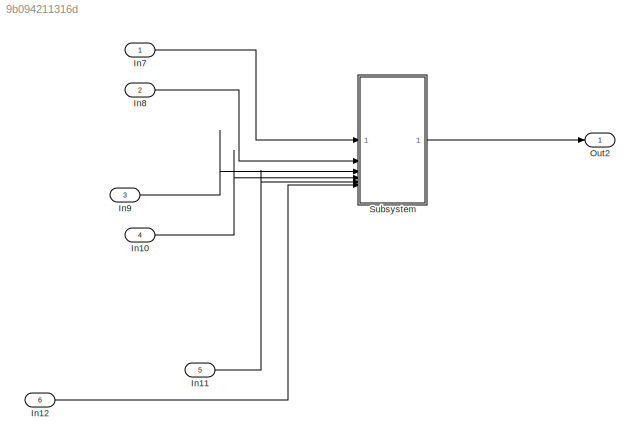
MODEL slx_9b094211316d
KIND model
CONFIG AbsTol = auto
CONFIG EnableMultiTasking = off
CONFIG FixedStep = auto
CONFIG MaxStep = auto
CONFIG MinStep = auto
CONFIG RelTol = 1e-3
CONFIG SampleTimeConstraint = Unconstrained
CONFIG SolverName = VariableStepAuto
CONFIG StartTime = 0.0
CONFIG StopTime = 10.0
BLOCK [Inport] In10
  Port = 4
BLOCK [Inport] In11
  Port = 5
BLOCK [Inport] In12
  Port = 6
BLOCK [Inport] In7
BLOCK [Inport] In8
  Port = 2
BLOCK [Inport] In9
  Port = 3
BLOCK [Outport] Out2
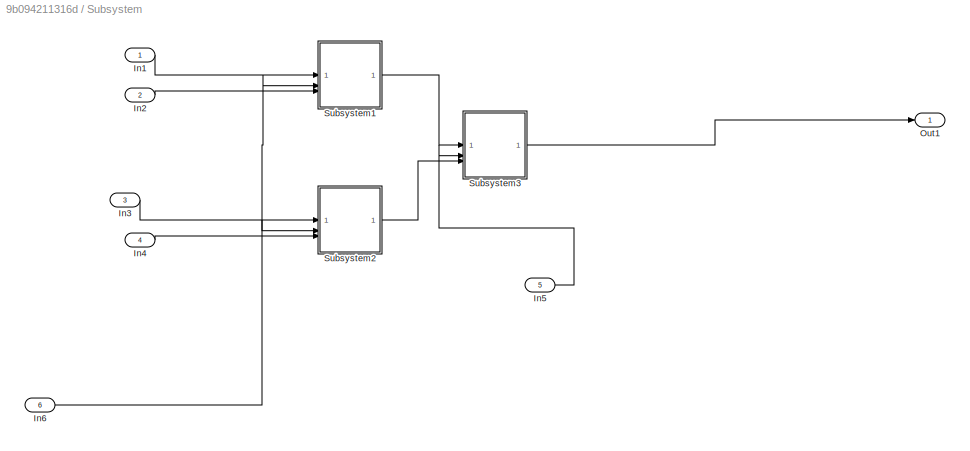
BLOCK [SubSystem] Subsystem
BLOCK [Inport] Subsystem/In1
BLOCK [Inport] Subsystem/In2
  Port = 2
BLOCK [Inport] Subsystem/In3
  Port = 3
BLOCK [Inport] Subsystem/In4
  Port = 4
BLOCK [Inport] Subsystem/In5
  Port = 5
BLOCK [Inport] Subsystem/In6
  Port = 6
BLOCK [Outport] Subsystem/Out1
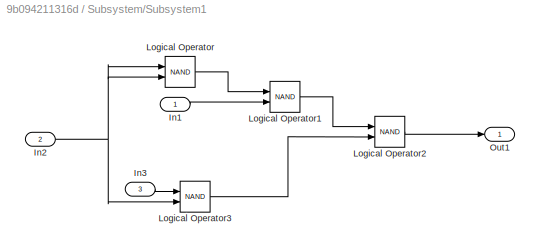
BLOCK [SubSystem] Subsystem/Subsystem1
BLOCK [Inport] Subsystem/Subsystem1/In1
BLOCK [Inport] Subsystem/Subsystem1/In2
  Port = 2
BLOCK [Inport] Subsystem/Subsystem1/In3
  Port = 3
BLOCK [Logic] Subsystem/Subsystem1/Logical Operator
  AllPortsSameDT = off
  Operator = NAND
  OutDataTypeStr = boolean
BLOCK [Logic] Subsystem/Subsystem1/Logical Operator1
  AllPortsSameDT = off
  Operator = NAND
  OutDataTypeStr = boolean
BLOCK [Logic] Subsystem/Subsystem1/Logical Operator2
  AllPortsSameDT = off
  Operator = NAND
  OutDataTypeStr = boolean
BLOCK [Logic] Subsystem/Subsystem1/Logical Operator3
  AllPortsSameDT = off
  Operator = NAND
  OutDataTypeStr = boolean
BLOCK [Outport] Subsystem/Subsystem1/Out1
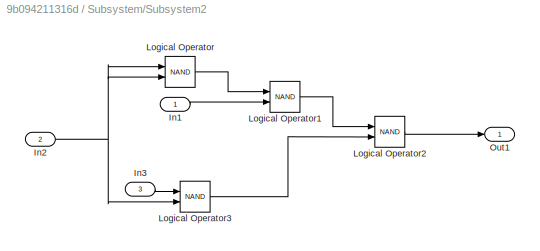
BLOCK [SubSystem] Subsystem/Subsystem2
BLOCK [Inport] Subsystem/Subsystem2/In1
BLOCK [Inport] Subsystem/Subsystem2/In2
  Port = 2
BLOCK [Inport] Subsystem/Subsystem2/In3
  Port = 3
BLOCK [Logic] Subsystem/Subsystem2/Logical Operator
  AllPortsSameDT = off
  Operator = NAND
  OutDataTypeStr = boolean
BLOCK [Logic] Subsystem/Subsystem2/Logical Operator1
  AllPortsSameDT = off
  Operator = NAND
  OutDataTypeStr = boolean
BLOCK [Logic] Subsystem/Subsystem2/Logical Operator2
  AllPortsSameDT = off
  Operator = NAND
  OutDataTypeStr = boolean
BLOCK [Logic] Subsystem/Subsystem2/Logical Operator3
  AllPortsSameDT = off
  Operator = NAND
  OutDataTypeStr = boolean
BLOCK [Outport] Subsystem/Subsystem2/Out1
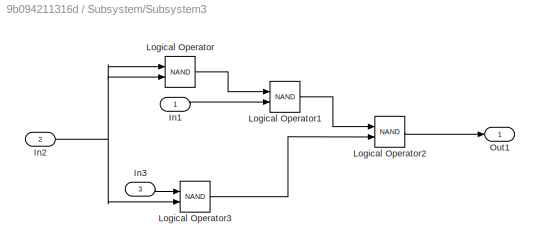
BLOCK [SubSystem] Subsystem/Subsystem3
BLOCK [Inport] Subsystem/Subsystem3/In1
BLOCK [Inport] Subsystem/Subsystem3/In2
  Port = 2
BLOCK [Inport] Subsystem/Subsystem3/In3
  Port = 3
BLOCK [Logic] Subsystem/Subsystem3/Logical Operator
  AllPortsSameDT = off
  Operator = NAND
  OutDataTypeStr = boolean
BLOCK [Logic] Subsystem/Subsystem3/Logical Operator1
  AllPortsSameDT = off
  Operator = NAND
  OutDataTypeStr = boolean
BLOCK [Logic] Subsystem/Subsystem3/Logical Operator2
  AllPortsSameDT = off
  Operator = NAND
  OutDataTypeStr = boolean
BLOCK [Logic] Subsystem/Subsystem3/Logical Operator3
  AllPortsSameDT = off
  Operator = NAND
  OutDataTypeStr = boolean
BLOCK [Outport] Subsystem/Subsystem3/Out1
LINE In10:1 -> Subsystem:4
LINE In11:1 -> Subsystem:5
LINE In12:1 -> Subsystem:6
LINE In7:1 -> Subsystem:1
LINE In8:1 -> Subsystem:2
LINE In9:1 -> Subsystem:3
LINE Subsystem/In1:1 -> Subsystem/Subsystem1:1
LINE Subsystem/In2:1 -> Subsystem/Subsystem1:3
LINE Subsystem/In3:1 -> Subsystem/Subsystem2:1
LINE Subsystem/In4:1 -> Subsystem/Subsystem2:3
LINE Subsystem/In5:1 -> Subsystem/Subsystem3:2
NET Subsystem/In6:1 -> Subsystem/Subsystem1:2, Subsystem/Subsystem2:2
LINE Subsystem/Subsystem1/In1:1 -> Subsystem/Subsystem1/Logical Operator1:2
NET Subsystem/Subsystem1/In2:1 -> Subsystem/Subsystem1/Logical Operator3:2, Subsystem/Subsystem1/Logical Operator:1, Subsystem/Subsystem1/Logical Operator:2
LINE Subsystem/Subsystem1/In3:1 -> Subsystem/Subsystem1/Logical Operator3:1
LINE Subsystem/Subsystem1/Logical Operator1:1 -> Subsystem/Subsystem1/Logical Operator2:1
LINE Subsystem/Subsystem1/Logical Operator2:1 -> Subsystem/Subsystem1/Out1:1
LINE Subsystem/Subsystem1/Logical Operator3:1 -> Subsystem/Subsystem1/Logical Operator2:2
LINE Subsystem/Subsystem1/Logical Operator:1 -> Subsystem/Subsystem1/Logical Operator1:1
LINE Subsystem/Subsystem1:1 -> Subsystem/Subsystem3:1
LINE Subsystem/Subsystem2/In1:1 -> Subsystem/Subsystem2/Logical Operator1:2
NET Subsystem/Subsystem2/In2:1 -> Subsystem/Subsystem2/Logical Operator3:2, Subsystem/Subsystem2/Logical Operator:1, Subsystem/Subsystem2/Logical Operator:2
LINE Subsystem/Subsystem2/In3:1 -> Subsystem/Subsystem2/Logical Operator3:1
LINE Subsystem/Subsystem2/Logical Operator1:1 -> Subsystem/Subsystem2/Logical Operator2:1
LINE Subsystem/Subsystem2/Logical Operator2:1 -> Subsystem/Subsystem2/Out1:1
LINE Subsystem/Subsystem2/Logical Operator3:1 -> Subsystem/Subsystem2/Logical Operator2:2
LINE Subsystem/Subsystem2/Logical Operator:1 -> Subsystem/Subsystem2/Logical Operator1:1
LINE Subsystem/Subsystem2:1 -> Subsystem/Subsystem3:3
LINE Subsystem/Subsystem3/In1:1 -> Subsystem/Subsystem3/Logical Operator1:2
NET Subsystem/Subsystem3/In2:1 -> Subsystem/Subsystem3/Logical Operator3:2, Subsystem/Subsystem3/Logical Operator:1, Subsystem/Subsystem3/Logical Operator:2
LINE Subsystem/Subsystem3/In3:1 -> Subsystem/Subsystem3/Logical Operator3:1
LINE Subsystem/Subsystem3/Logical Operator1:1 -> Subsystem/Subsystem3/Logical Operator2:1
LINE Subsystem/Subsystem3/Logical Operator2:1 -> Subsystem/Subsystem3/Out1:1
LINE Subsystem/Subsystem3/Logical Operator3:1 -> Subsystem/Subsystem3/Logical Operator2:2
LINE Subsystem/Subsystem3/Logical Operator:1 -> Subsystem/Subsystem3/Logical Operator1:1
LINE Subsystem/Subsystem3:1 -> Subsystem/Out1:1
LINE Subsystem:1 -> Out2:1
note: NET lines group one-source signal fan-out (src -> all destinations, sorted); 1:1 wires keep LINE
